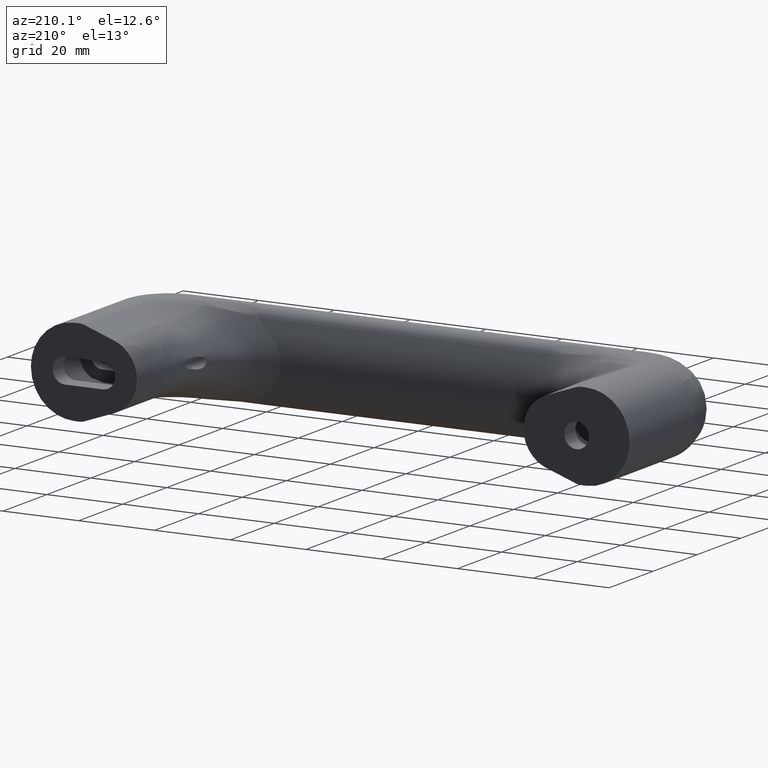
[diagram: clean part render]
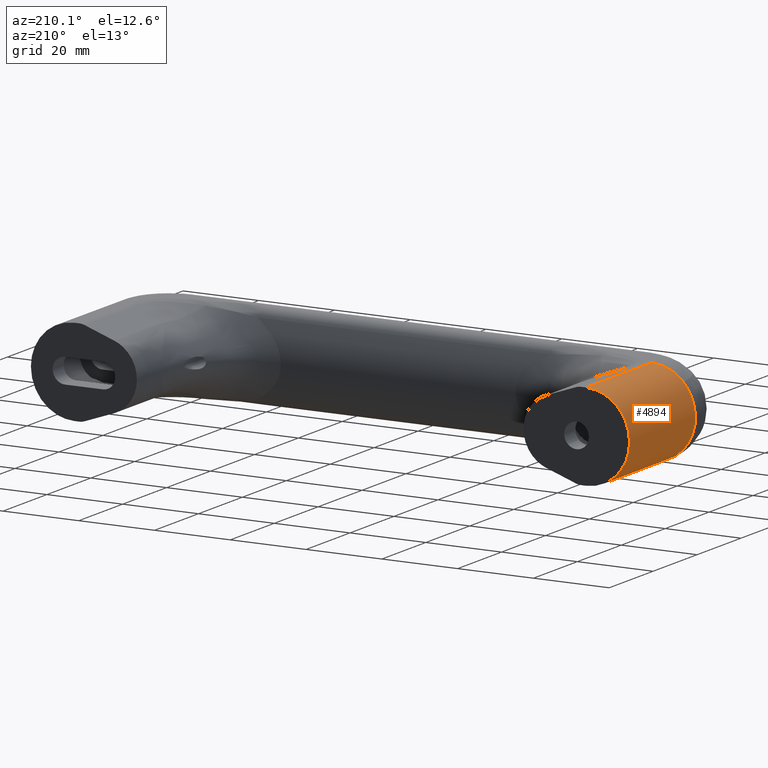
[diagram: same view with one face highlighted and labeled with its STEP entity id]
A machine part, auxiliary view. The second image highlights one B-rep face of the part: STEP entity #4894.
In plain terms, the highlighted face is a freeform B-spline surface patch.
Its self-contained STEP definition (entity closure, byte-faithful):
#2604=CARTESIAN_POINT('',(-75.761355820929197,-8.0,30.0));
#2605=VERTEX_POINT('',#2604);
#2710=CARTESIAN_POINT('',(-75.761355820929197,8.0,30.0));
#2711=VERTEX_POINT('',#2710);
#2991=CARTESIAN_POINT('',(-75.761355820929197,8.0,30.0));
#2992=CARTESIAN_POINT('',(-76.146027750210621,7.602780981942588,30.0));
#2993=CARTESIAN_POINT('',(-76.976626234373271,6.611072505064472,30.000000000000021));
#2994=CARTESIAN_POINT('',(-78.074653536932431,4.732674042171523,30.000000000000021));
#2995=CARTESIAN_POINT('',(-78.786383897911549,2.574329372271575,29.999999999999979));
#2996=CARTESIAN_POINT('',(-79.052454587786599,0.370659545752855,30.000000000000089));
#2997=CARTESIAN_POINT('',(-78.949890481408318,-1.523505464326111,29.999999999999911));
#2998=CARTESIAN_POINT('',(-78.523376797573732,-3.463746488322320,30.000000000000160));
#2999=CARTESIAN_POINT('',(-77.620235084743129,-5.695160469386190,29.999999999999890));
#3000=CARTESIAN_POINT('',(-76.531033548103551,-7.205814284276475,29.999999999999972));
#3001=CARTESIAN_POINT('',(-75.761355820929197,-8.0,30.0));
#3002=B_SPLINE_CURVE_WITH_KNOTS('',3,(#2991,#2992,#2993,#2994,#2995,#2996,#2997,#2998,#2999,#3000,#3001),.UNSPECIFIED.,.F.,.U.,(4,1,1,1,1,1,1,1,4),(0.000000155090905,1.658871346830699,3.870700056754540,6.497262160217932,8.432652592924601,10.506171808955109,12.165057158722581,14.376896058628050,17.694635429807860),.UNSPECIFIED.);
#3003=EDGE_CURVE('',#2711,#2605,#3002,.T.);
#4775=CARTESIAN_POINT('',(-67.500000000000000,-11.500000000000201,30.0));
#4776=VERTEX_POINT('',#4775);
#4777=CARTESIAN_POINT('',(-75.761355820929197,-8.0,30.0));
#4778=CARTESIAN_POINT('',(-75.160370469525660,-8.620878636925523,29.999999999999879));
#4779=CARTESIAN_POINT('',(-74.078572243456605,-9.511076384846538,30.000000000000199));
#4780=CARTESIAN_POINT('',(-72.227865220939947,-10.539457153070339,29.999999999999879));
#4781=CARTESIAN_POINT('',(-70.140147958508436,-11.288313888148579,30.000000000000060));
#4782=CARTESIAN_POINT('',(-68.460120378377908,-11.500274120507250,30.000000000000071));
#4783=CARTESIAN_POINT('',(-67.500000000000000,-11.500000000000201,30.0));
#4784=B_SPLINE_CURVE_WITH_KNOTS('',3,(#4777,#4778,#4779,#4780,#4781,#4782,#4783),.UNSPECIFIED.,.F.,.U.,(4,1,1,1,4),(0.000000043954667,2.592269429731612,4.176459306652545,6.336646935015761,9.216953530441646),.UNSPECIFIED.);
#4785=EDGE_CURVE('',#2605,#4776,#4784,.T.);
#4815=CARTESIAN_POINT('',(-67.399644841768705,11.499562115237969,30.750000000000000));
#4816=CARTESIAN_POINT('',(-67.399644841768705,11.499562115237969,-0.768750000000001));
#4817=CARTESIAN_POINT('',(-79.307790007415207,11.603482923731722,30.750000000000007));
#4818=CARTESIAN_POINT('',(-79.307790007415207,11.603482923731722,-0.768750000000001));
#4819=CARTESIAN_POINT('',(-78.996059237218901,-0.301034905540533,30.750000000000000));
#4820=CARTESIAN_POINT('',(-78.996059237218901,-0.301034905540533,-0.768750000000001));
#4821=CARTESIAN_POINT('',(-78.684328467022610,-12.205552734812791,30.750000000000007));
#4822=CARTESIAN_POINT('',(-78.684328467022610,-12.205552734812791,-0.768750000000001));
#4823=CARTESIAN_POINT('',(-66.797941795349175,-11.478550181851469,30.750000000000000));
#4824=CARTESIAN_POINT('',(-66.797941795349175,-11.478550181851469,-0.768750000000001));
#4832=(BOUNDED_SURFACE()B_SPLINE_SURFACE(1,2,((#4815,#4817,#4819,#4821,#4823),(#4816,#4818,#4820,#4822,#4824)),.UNSPECIFIED.,.F.,.F.,.U.)B_SPLINE_SURFACE_WITH_KNOTS((2,2),(3,2,3),(0.0,31.518750000000001),(0.0,19.525841545641811,39.051683091283607),.UNSPECIFIED.)GEOMETRIC_REPRESENTATION_ITEM()RATIONAL_B_SPLINE_SURFACE(((1.0,0.694658370458997,1.0,0.694658370458997,1.0),(1.0,0.694658370458997,1.0,0.694658370458997,1.0)))REPRESENTATION_ITEM('')SURFACE());
#4833=CARTESIAN_POINT('',(-67.500000000000000,11.500000000000000,0.0));
#4834=VERTEX_POINT('',#4833);
#4835=CARTESIAN_POINT('',(-67.500000000000000,11.500000000000000,30.0));
#4836=VERTEX_POINT('',#4835);
#4837=CARTESIAN_POINT('',(-67.500000000000000,11.500000000000000,0.0));
#4838=CARTESIAN_POINT('',(-67.500000000000000,11.500000000000000,30.0));
#4839=QUASI_UNIFORM_CURVE('',1,(#4837,#4838),.UNSPECIFIED.,.F.,.U.);
#4840=EDGE_CURVE('',#4834,#4836,#4839,.T.);
#4841=ORIENTED_EDGE('',*,*,#4840,.F.);
#4842=CARTESIAN_POINT('',(-78.999999999999844,0.000001869356854,0.0));
#4843=VERTEX_POINT('',#4842);
#4844=CARTESIAN_POINT('',(-78.999999999999844,0.000001869356854,0.0));
#4845=CARTESIAN_POINT('',(-79.000183824840562,0.893804121235276,0.0));
#4846=CARTESIAN_POINT('',(-78.812582672105478,2.493154742676897,0.0));
#4847=CARTESIAN_POINT('',(-78.103130110997427,4.597128894797955,0.0));
#4848=CARTESIAN_POINT('',(-77.113081889532097,6.422392947299795,0.0));
#4849=CARTESIAN_POINT('',(-75.843030436437360,8.009298821851138,0.0));
#4850=CARTESIAN_POINT('',(-74.305625810797494,9.335352589572672,0.0));
#4851=CARTESIAN_POINT('',(-72.410293921767547,10.487535839761080,0.0));
#4852=CARTESIAN_POINT('',(-70.134333159168605,11.301741290428041,0.0));
#4853=CARTESIAN_POINT('',(-68.346758384575239,11.500140276909050,0.0));
#4854=CARTESIAN_POINT('',(-67.500000000000000,11.500000000000000,0.0));
#4855=B_SPLINE_CURVE_WITH_KNOTS('',3,(#4844,#4845,#4846,#4847,#4848,#4849,#4850,#4851,#4852,#4853,#4854),.UNSPECIFIED.,.F.,.U.,(4,1,1,1,1,1,1,1,4),(0.000000157359910,2.681385629584430,4.798323186098498,6.632994430277911,8.891053533514455,10.866775257877830,12.701437598284571,15.523995102725801,18.064270049462209),.UNSPECIFIED.);
#4856=EDGE_CURVE('',#4843,#4834,#4855,.T.);
#4857=ORIENTED_EDGE('',*,*,#4856,.F.);
#4858=CARTESIAN_POINT('',(-67.500000000000000,-11.500000000000000,0.0));
#4859=VERTEX_POINT('',#4858);
#4860=CARTESIAN_POINT('',(-67.500000000000000,-11.500000000000000,0.0));
#4861=CARTESIAN_POINT('',(-68.205623076552754,-11.500070196742580,0.0));
#4862=CARTESIAN_POINT('',(-69.569818708428997,-11.374055051555640,0.0));
#4863=CARTESIAN_POINT('',(-71.390045064949973,-10.870333580284420,0.0));
#4864=CARTESIAN_POINT('',(-73.109530647867885,-10.095488095426200,0.0));
#4865=CARTESIAN_POINT('',(-74.450498558499717,-9.211336467186662,0.0));
#4866=CARTESIAN_POINT('',(-75.755974695750780,-8.056956510265318,0.0));
#4867=CARTESIAN_POINT('',(-76.835395085645217,-6.805645922565851,0.0));
#4868=CARTESIAN_POINT('',(-77.840225359549535,-5.152175947144895,0.0));
#4869=CARTESIAN_POINT('',(-78.734609660619682,-2.916363235579472,0.0));
#4870=CARTESIAN_POINT('',(-79.000446981714219,-1.129058808851595,0.0));
#4871=CARTESIAN_POINT('',(-78.999999999999844,0.000001869356854,0.0));
#4872=B_SPLINE_CURVE_WITH_KNOTS('',3,(#4860,#4861,#4862,#4863,#4864,#4865,#4866,#4867,#4868,#4869,#4870,#4871),.UNSPECIFIED.,.F.,.U.,(4,1,1,1,1,1,1,1,1,4),(0.000000156711408,2.116868656667334,4.092684056511322,5.645104106319115,7.761997578222221,8.891054568698099,10.866776527129529,12.701439079168161,14.677239682301790,18.064272156676299),.UNSPECIFIED.);
#4873=EDGE_CURVE('',#4859,#4843,#4872,.T.);
#4874=ORIENTED_EDGE('',*,*,#4873,.F.);
#4875=CARTESIAN_POINT('',(-67.500000000000000,-11.500000000000201,30.0));
#4876=CARTESIAN_POINT('',(-67.500000000000000,-11.500000000000000,0.0));
#4877=QUASI_UNIFORM_CURVE('',1,(#4875,#4876),.UNSPECIFIED.,.F.,.U.);
#4878=EDGE_CURVE('',#4776,#4859,#4877,.T.);
#4879=ORIENTED_EDGE('',*,*,#4878,.F.);
#4880=ORIENTED_EDGE('',*,*,#4785,.F.);
#4881=ORIENTED_EDGE('',*,*,#3003,.F.);
#4882=CARTESIAN_POINT('',(-67.500000000000000,11.500000000000000,30.0));
#4883=CARTESIAN_POINT('',(-68.364088610035765,11.500146833864161,29.999999999999901));
#4884=CARTESIAN_POINT('',(-70.140234660767860,11.298953858664440,30.000000000000220));
#4885=CARTESIAN_POINT('',(-72.233513510233891,10.548197433405420,29.999999999999869));
#4886=CARTESIAN_POINT('',(-74.153169883679865,9.449648282229360,30.000000000000039));
#4887=CARTESIAN_POINT('',(-75.160373705594324,8.620884931433844,30.000000000000082));
#4888=CARTESIAN_POINT('',(-75.761355820929197,8.0,30.0));
#4889=B_SPLINE_CURVE_WITH_KNOTS('',3,(#4882,#4883,#4884,#4885,#4886,#4887,#4888),.UNSPECIFIED.,.F.,.U.,(4,1,1,1,4),(0.000000043952630,2.592269429728552,5.328543622715492,6.624684144664872,9.216953530441622),.UNSPECIFIED.);
#4890=EDGE_CURVE('',#4836,#2711,#4889,.T.);
#4891=ORIENTED_EDGE('',*,*,#4890,.F.);
#4892=EDGE_LOOP('',(#4841,#4857,#4874,#4879,#4880,#4881,#4891));
#4893=FACE_OUTER_BOUND('',#4892,.T.);
#4894=ADVANCED_FACE('',(#4893),#4832,.T.);